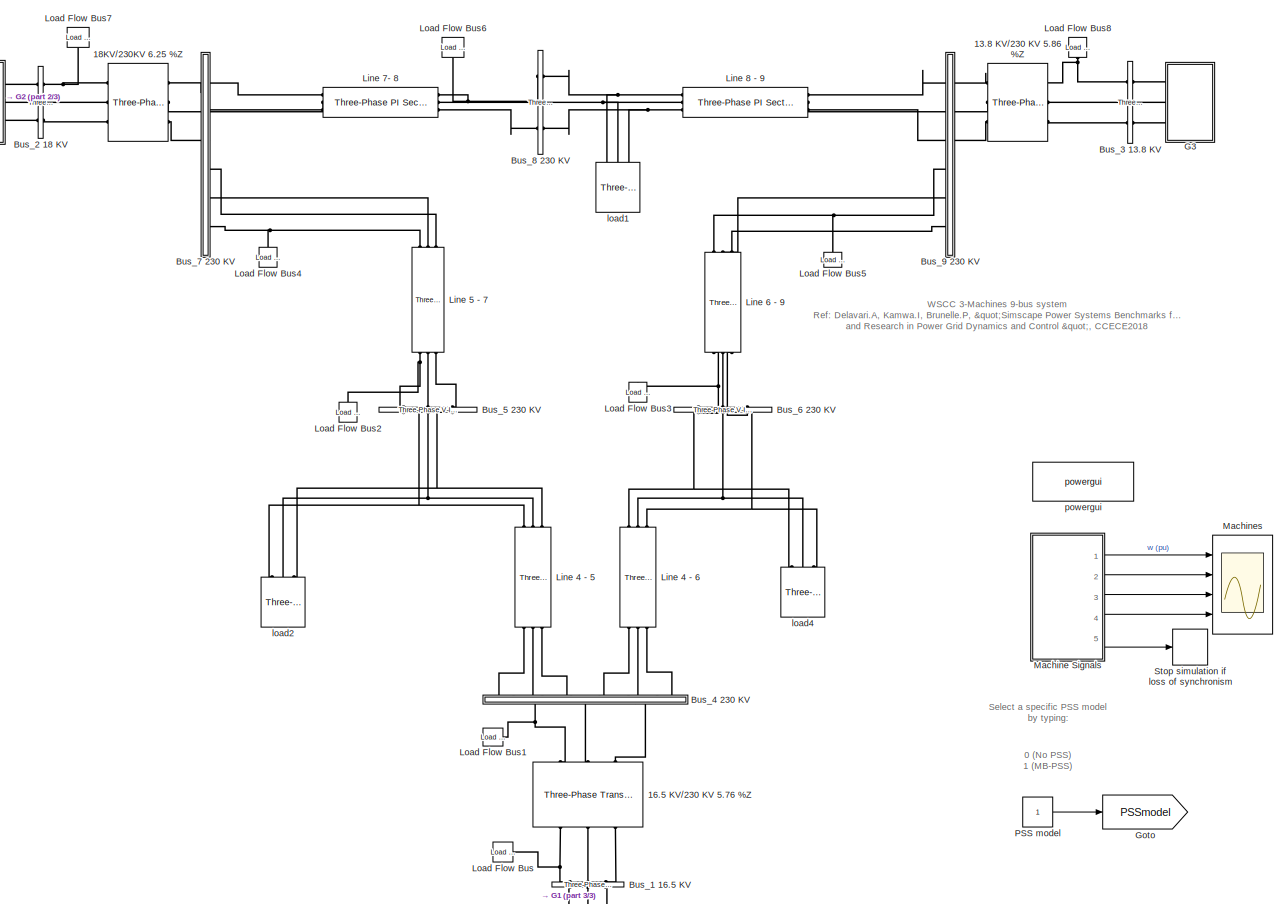
[diagram: root canvas - part 1/3, most of the canvas]
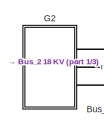
[diagram: root canvas - part 2/3, top left region]
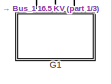
[diagram: root canvas - part 3/3, bottom center region]
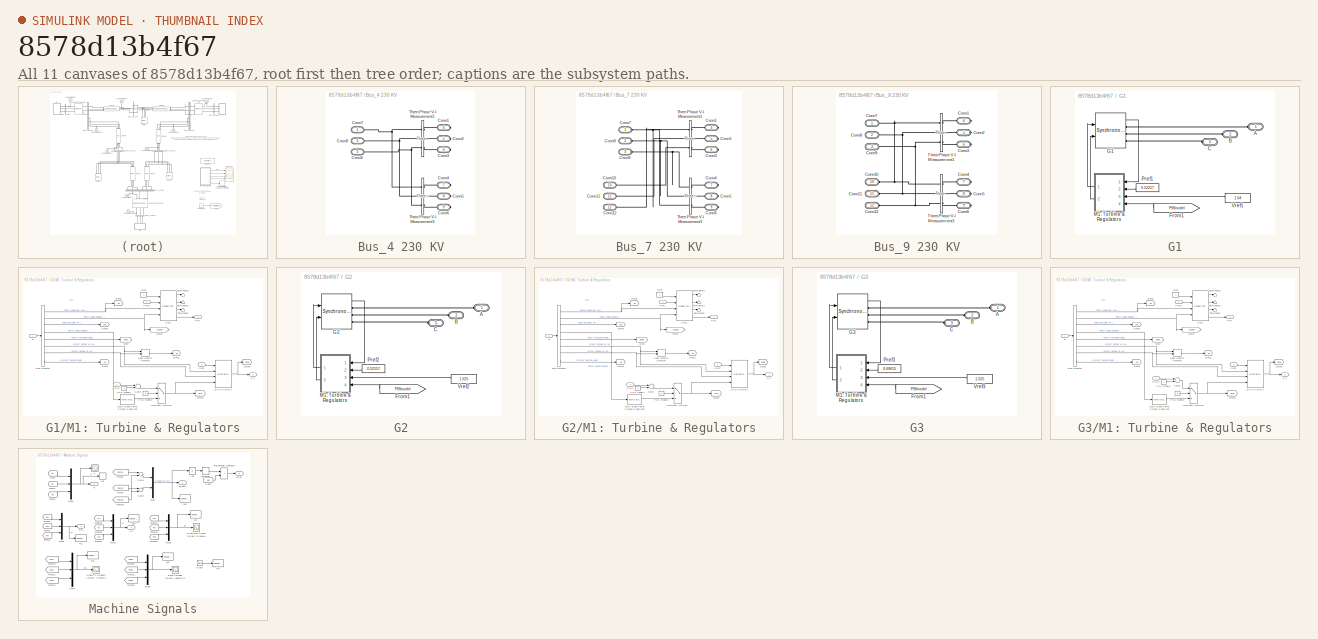
[diagram: thumbnail index - all 11 canvases of the model, root first then tree order]
MODEL slx_8578d13b4f67
KIND model
CONFIG AbsTol = 1e-3
CONFIG FixedStep = auto
CONFIG InitFcn = PSSMODEL=1;\nMB=[1   0.2 30   1.25 40    12 160];\n\nk=[8.3222    2.6014   19.0811    1.9818    3.6841   19.1783  240.6785    2.5684    4.3666   58.7391 7.6960   47.7975    8.7139  296.2463    2.7543    6.5051   47.7755    0.4780   35.4950   18.1866 94.2186]\nk1=k(1);\nk2=k(2);\nk3=k(3);\nk4=k(4);\nk5=k(5);\nk6=k(6);\nk7=k(7);\nk8=k(8);\nk9=k(9);\nk10=k(10);\nk11=k(11);\nk12=k(12);\nk13=k(13);\nk14=k(14);\nk15=k(15...<+69ch>
CONFIG MaxStep = 1/60
CONFIG MinStep = auto
CONFIG RelTol = 1e-4
CONFIG SampleTimeConstraint = Unconstrained
CONFIG Solver = ode23tb
CONFIG SolverMode = Auto
CONFIG SolverName = ode23tb
CONFIG StartTime = 0.0
CONFIG StopTime = 30
BLOCK [Reference]  Line 4 - 6  REF=powerlib/Elements/Three-Phase
PI Section Line
  AttributesFormatString = \n
  Ports = [0, 0, 0, 0, 0, 3, 3]
  SourceBlock = powerlib/Elements/Three-Phase\nPI Section Line
  SourceType = Three-Phase PI Section Line
BLOCK [Reference]  Line 6 - 9  REF=powerlib/Elements/Three-Phase
PI Section Line
  AttributesFormatString = \n
  Ports = [0, 0, 0, 0, 0, 3, 3]
  SourceBlock = powerlib/Elements/Three-Phase\nPI Section Line
  SourceType = Three-Phase PI Section Line
BLOCK [Reference] 13.8 KV//230 KV 5.86 %Z  REF=powerlib/Elements/Three-Phase
Transformer
(Two Windings)
  Ports = [0, 0, 0, 0, 0, 3, 3]
  SourceBlock = powerlib/Elements/Three-Phase\nTransformer\n(Two Windings)
  SourceType = Three-Phase Transformer (Two Windings)
BLOCK [Reference] 16.5 KV//230 KV 5.76 %Z       REF=powerlib/Elements/Three-Phase
Transformer
(Two Windings)
  Ports = [0, 0, 0, 0, 0, 3, 3]
  SourceBlock = powerlib/Elements/Three-Phase\nTransformer\n(Two Windings)
  SourceType = Three-Phase Transformer (Two Windings)
BLOCK [Reference] 18KV//230KV 6.25 %Z  REF=powerlib/Elements/Three-Phase
Transformer
(Two Windings)
  Ports = [0, 0, 0, 0, 0, 3, 3]
  SourceBlock = powerlib/Elements/Three-Phase\nTransformer\n(Two Windings)
  SourceType = Three-Phase Transformer (Two Windings)
BLOCK [Reference] Bus_1 16.5 KV  REF=powerlib/Measurements/Three-Phase
V-I Measurement
  Ports = [0, 0, 0, 0, 0, 3, 3]
  SourceBlock = powerlib/Measurements/Three-Phase\nV-I Measurement
  SourceType = Three-Phase VI Measurement
BLOCK [Reference] Bus_2 18 KV  REF=powerlib/Measurements/Three-Phase
V-I Measurement
  Ports = [0, 0, 0, 0, 0, 3, 3]
  SourceBlock = powerlib/Measurements/Three-Phase\nV-I Measurement
  SourceType = Three-Phase VI Measurement
BLOCK [Reference] Bus_3 13.8 KV  REF=powerlib/Measurements/Three-Phase
V-I Measurement
  Ports = [0, 0, 0, 0, 0, 3, 3]
  SourceBlock = powerlib/Measurements/Three-Phase\nV-I Measurement
  SourceType = Three-Phase VI Measurement
BLOCK [SubSystem] Bus_4 230 KV
  Ports = [0, 0, 0, 0, 0, 3, 6]
  RequestExecContextInheritance = off
  Variant = off
BLOCK [PMIOPort] Bus_4 230 KV/Conn1
  Port = 4
  Side = Right
BLOCK [PMIOPort] Bus_4 230 KV/Conn2
  Port = 5
  Side = Right
BLOCK [PMIOPort] Bus_4 230 KV/Conn3
  Port = 6
  Side = Right
BLOCK [PMIOPort] Bus_4 230 KV/Conn4
  Port = 7
  Side = Right
BLOCK [PMIOPort] Bus_4 230 KV/Conn5
  Port = 8
  Side = Right
BLOCK [PMIOPort] Bus_4 230 KV/Conn6
  Port = 9
  Side = Right
BLOCK [PMIOPort] Bus_4 230 KV/Conn7
  Port = 1
  Side = Left
BLOCK [PMIOPort] Bus_4 230 KV/Conn8
  Port = 2
  Side = Left
BLOCK [PMIOPort] Bus_4 230 KV/Conn9
  Port = 3
  Side = Left
BLOCK [Reference] Bus_4 230 KV/Three-Phase V-I Measurement1  REF=powerlib/Measurements/Three-Phase
V-I Measurement
  Ports = [0, 0, 0, 0, 0, 3, 3]
  SourceBlock = powerlib/Measurements/Three-Phase\nV-I Measurement
  SourceType = Three-Phase VI Measurement
BLOCK [Reference] Bus_4 230 KV/Three-Phase V-I Measurement3  REF=powerlib/Measurements/Three-Phase
V-I Measurement
  Ports = [0, 0, 0, 0, 0, 3, 3]
  SourceBlock = powerlib/Measurements/Three-Phase\nV-I Measurement
  SourceType = Three-Phase VI Measurement
BLOCK [Reference] Bus_5 230 KV  REF=powerlib/Measurements/Three-Phase
V-I Measurement
  Ports = [0, 0, 0, 0, 0, 3, 3]
  SourceBlock = powerlib/Measurements/Three-Phase\nV-I Measurement
  SourceType = Three-Phase VI Measurement
BLOCK [Reference] Bus_6 230 KV  REF=powerlib/Measurements/Three-Phase
V-I Measurement
  Ports = [0, 0, 0, 0, 0, 3, 3]
  SourceBlock = powerlib/Measurements/Three-Phase\nV-I Measurement
  SourceType = Three-Phase VI Measurement
BLOCK [SubSystem] Bus_7 230 KV
  Ports = [0, 0, 0, 0, 0, 6, 6]
  RequestExecContextInheritance = off
  Variant = off
BLOCK [PMIOPort] Bus_7 230 KV/Conn1
  Port = 4
  Side = Right
BLOCK [PMIOPort] Bus_7 230 KV/Conn10
  Port = 10
  Side = Left
BLOCK [PMIOPort] Bus_7 230 KV/Conn11
  Port = 11
  Side = Left
BLOCK [PMIOPort] Bus_7 230 KV/Conn12
  Port = 12
  Side = Left
BLOCK [PMIOPort] Bus_7 230 KV/Conn2
  Port = 5
  Side = Right
BLOCK [PMIOPort] Bus_7 230 KV/Conn3
  Port = 6
  Side = Right
BLOCK [PMIOPort] Bus_7 230 KV/Conn4
  Port = 7
  Side = Right
BLOCK [PMIOPort] Bus_7 230 KV/Conn5
  Port = 8
  Side = Right
BLOCK [PMIOPort] Bus_7 230 KV/Conn6
  Port = 9
  Side = Right
BLOCK [PMIOPort] Bus_7 230 KV/Conn7
  Port = 1
  Side = Left
BLOCK [PMIOPort] Bus_7 230 KV/Conn8
  Port = 2
  Side = Left
BLOCK [PMIOPort] Bus_7 230 KV/Conn9
  Port = 3
  Side = Left
BLOCK [Reference] Bus_7 230 KV/Three-Phase V-I Measurement1  REF=powerlib/Measurements/Three-Phase
V-I Measurement
  Ports = [0, 0, 0, 0, 0, 3, 3]
  SourceBlock = powerlib/Measurements/Three-Phase\nV-I Measurement
  SourceType = Three-Phase VI Measurement
BLOCK [Reference] Bus_7 230 KV/Three-Phase V-I Measurement3  REF=powerlib/Measurements/Three-Phase
V-I Measurement
  Ports = [0, 0, 0, 0, 0, 3, 3]
  SourceBlock = powerlib/Measurements/Three-Phase\nV-I Measurement
  SourceType = Three-Phase VI Measurement
BLOCK [Reference] Bus_8 230 KV  REF=powerlib/Measurements/Three-Phase
V-I Measurement
  Ports = [0, 0, 0, 0, 0, 3, 3]
  SourceBlock = powerlib/Measurements/Three-Phase\nV-I Measurement
  SourceType = Three-Phase VI Measurement
BLOCK [SubSystem] Bus_9 230 KV
  Ports = [0, 0, 0, 0, 0, 6, 6]
  RequestExecContextInheritance = off
  Variant = off
BLOCK [PMIOPort] Bus_9 230 KV/Conn1
  Port = 4
  Side = Right
BLOCK [PMIOPort] Bus_9 230 KV/Conn10
  Port = 10
  Side = Left
BLOCK [PMIOPort] Bus_9 230 KV/Conn11
  Port = 11
  Side = Left
BLOCK [PMIOPort] Bus_9 230 KV/Conn12
  Port = 12
  Side = Left
BLOCK [PMIOPort] Bus_9 230 KV/Conn2
  Port = 5
  Side = Right
BLOCK [PMIOPort] Bus_9 230 KV/Conn3
  Port = 6
  Side = Right
BLOCK [PMIOPort] Bus_9 230 KV/Conn4
  Port = 7
  Side = Right
BLOCK [PMIOPort] Bus_9 230 KV/Conn5
  Port = 8
  Side = Right
BLOCK [PMIOPort] Bus_9 230 KV/Conn6
  Port = 9
  Side = Right
BLOCK [PMIOPort] Bus_9 230 KV/Conn7
  Port = 1
  Side = Left
BLOCK [PMIOPort] Bus_9 230 KV/Conn8
  Port = 2
  Side = Left
BLOCK [PMIOPort] Bus_9 230 KV/Conn9
  Port = 3
  Side = Left
BLOCK [Reference] Bus_9 230 KV/Three-Phase V-I Measurement1  REF=powerlib/Measurements/Three-Phase
V-I Measurement
  Ports = [0, 0, 0, 0, 0, 3, 3]
  SourceBlock = powerlib/Measurements/Three-Phase\nV-I Measurement
  SourceType = Three-Phase VI Measurement
BLOCK [Reference] Bus_9 230 KV/Three-Phase V-I Measurement3  REF=powerlib/Measurements/Three-Phase
V-I Measurement
  Ports = [0, 0, 0, 0, 0, 3, 3]
  SourceBlock = powerlib/Measurements/Three-Phase\nV-I Measurement
  SourceType = Three-Phase VI Measurement
BLOCK [SubSystem] G1
  Ports = [0, 0, 0, 0, 0, 3]
  RequestExecContextInheritance = off
  Variant = off
BLOCK [PMIOPort] G1/A
  Port = 1
  Side = Left
BLOCK [PMIOPort] G1/B
  Port = 2
  Side = Left
BLOCK [PMIOPort] G1/C
  Port = 3
  Side = Left
BLOCK [From] G1/From1
  CloseFcn = tagdialog Close
  GotoTag = PSSmodel
  TagVisibility = global
BLOCK [Reference] G1/G1  REF=powerlib/Machines/Synchronous Machine
pu Standard
  AttributesFormatString = \n\n
  Ports = [2, 1, 0, 0, 0, 0, 3]
  SourceBlock = powerlib/Machines/Synchronous Machine\npu Standard
  SourceType = Synchronous Machine
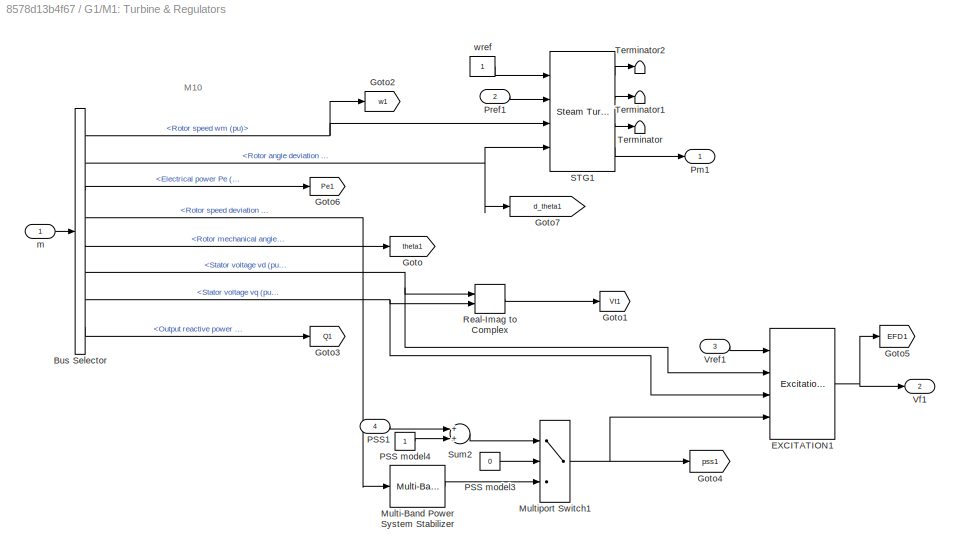
BLOCK [SubSystem] G1/M1: Turbine & Regulators
  Ports = [4, 2]
  RequestExecContextInheritance = off
  Variant = off
BLOCK [BusSelector] G1/M1: Turbine & Regulators/Bus Selector
  OutputSignals = Mechanical.Rotor speed  wm  (pu),Mechanical.Rotor angle deviation  d_theta (rad),Mechanical.Electrical power  Pe (pu),Mechanical.Rotor speed deviation  dw (pu),Mechanical.Rotor mechanical angle  theta (deg),dq0 components.Stator voltage  vd (pu),dq0 components.Stator voltage  vq (pu),Output reactive power  Qeo (pu)  <repeated x3 — deduplicated; at blocks: Bus Selector>
  Ports = [1, 8]
BLOCK [Reference] G1/M1: Turbine & Regulators/EXCITATION1  REF=sps_avr/Excitation System
  Ports = [4, 1]
  SourceBlock = sps_avr/Excitation System
  SourceType = Excitation System
BLOCK [Goto] G1/M1: Turbine & Regulators/Goto
  GotoTag = theta1
  TagVisibility = global
BLOCK [Goto] G1/M1: Turbine & Regulators/Goto1
  GotoTag = Vt1
  TagVisibility = global
BLOCK [Goto] G1/M1: Turbine & Regulators/Goto2
  GotoTag = w1
  TagVisibility = global
BLOCK [Goto] G1/M1: Turbine & Regulators/Goto3
  GotoTag = Q1
  TagVisibility = global
BLOCK [Goto] G1/M1: Turbine & Regulators/Goto4
  GotoTag = pss1
  TagVisibility = global
BLOCK [Goto] G1/M1: Turbine & Regulators/Goto5
  GotoTag = EFD1
  TagVisibility = global
BLOCK [Goto] G1/M1: Turbine & Regulators/Goto6
  GotoTag = Pe1
  TagVisibility = global
BLOCK [Goto] G1/M1: Turbine & Regulators/Goto7
  GotoTag = d_theta1
  TagVisibility = global
BLOCK [Reference] G1/M1: Turbine & Regulators/Multi-Band Power System Stabilizer  REF=powerlib/Machines/Multi-Band
Power System Stabilizer
  Ports = [1, 1]
  SourceBlock = powerlib/Machines/Multi-Band\nPower System Stabilizer
  SourceType = Multi-Band Power System Stabilizer
BLOCK [MultiPortSwitch] G1/M1: Turbine & Regulators/Multiport Switch1
  Inputs = 2
  Ports = [3, 1]
  SaturateOnIntegerOverflow = off
BLOCK [Constant] G1/M1: Turbine & Regulators/PSS model3
  Value = 0
BLOCK [Constant] G1/M1: Turbine & Regulators/PSS model4
BLOCK [Inport] G1/M1: Turbine & Regulators/PSS1
  IconDisplay = Port number
  Port = 4
BLOCK [Outport] G1/M1: Turbine & Regulators/Pm1
  IconDisplay = Port number
  InitialOutput = 0
BLOCK [Inport] G1/M1: Turbine & Regulators/Pref1
  IconDisplay = Port number
  Port = 2
BLOCK [RealImagToComplex] G1/M1: Turbine & Regulators/Real-Imag to Complex
  Ports = [2, 1]
BLOCK [Reference] G1/M1: Turbine & Regulators/STG1  REF=powerlib/Machines/Steam Turbine
and Governor
  Ports = [4, 4]
  SourceBlock = powerlib/Machines/Steam Turbine\nand Governor
  SourceType = Steam Turbine and Governor
BLOCK [Sum] G1/M1: Turbine & Regulators/Sum2
  Ports = [2, 1]
BLOCK [Terminator] G1/M1: Turbine & Regulators/Terminator
BLOCK [Terminator] G1/M1: Turbine & Regulators/Terminator1
BLOCK [Terminator] G1/M1: Turbine & Regulators/Terminator2
BLOCK [Outport] G1/M1: Turbine & Regulators/Vf1
  IconDisplay = Port number
  InitialOutput = 0
  Port = 2
BLOCK [Inport] G1/M1: Turbine & Regulators/Vref1
  IconDisplay = Port number
  Port = 3
BLOCK [Inport] G1/M1: Turbine & Regulators/m
  IconDisplay = Port number
BLOCK [Constant] G1/M1: Turbine & Regulators/wref
BLOCK [Constant] G1/Pref1
  Value = 0.52217
BLOCK [Constant] G1/Vref1
  Value = 1.04
BLOCK [SubSystem] G2
  Ports = [0, 0, 0, 0, 0, 3]
  RequestExecContextInheritance = off
  Variant = off
BLOCK [PMIOPort] G2/A
  Port = 1
  Side = Left
BLOCK [PMIOPort] G2/B
  Port = 2
  Side = Left
BLOCK [PMIOPort] G2/C
  Port = 3
  Side = Left
BLOCK [From] G2/From1
  CloseFcn = tagdialog Close
  GotoTag = PSSmodel
  TagVisibility = global
BLOCK [Reference] G2/G2  REF=powerlib/Machines/Synchronous Machine
pu Standard
  AttributesFormatString = \n\n
  Ports = [2, 1, 0, 0, 0, 0, 3]
  SourceBlock = powerlib/Machines/Synchronous Machine\npu Standard
  SourceType = Synchronous Machine
BLOCK [SubSystem] G2/M1: Turbine & Regulators
  Ports = [4, 2]
  RequestExecContextInheritance = off
  Variant = off
BLOCK [BusSelector] G2/M1: Turbine & Regulators/Bus Selector
  Ports = [1, 8]
BLOCK [Reference] G2/M1: Turbine & Regulators/EXCITATION1  REF=sps_avr/Excitation System
  Ports = [4, 1]
  SourceBlock = sps_avr/Excitation System
  SourceType = Excitation System
BLOCK [Goto] G2/M1: Turbine & Regulators/Goto
  GotoTag = theta2
  TagVisibility = global
BLOCK [Goto] G2/M1: Turbine & Regulators/Goto1
  GotoTag = Vt2
  TagVisibility = global
BLOCK [Goto] G2/M1: Turbine & Regulators/Goto2
  GotoTag = w2
  TagVisibility = global
BLOCK [Goto] G2/M1: Turbine & Regulators/Goto3
  GotoTag = Q2
  TagVisibility = global
BLOCK [Goto] G2/M1: Turbine & Regulators/Goto4
  GotoTag = pss2
  TagVisibility = global
BLOCK [Goto] G2/M1: Turbine & Regulators/Goto5
  GotoTag = EFD2
  TagVisibility = global
BLOCK [Goto] G2/M1: Turbine & Regulators/Goto6
  GotoTag = Pe2
  TagVisibility = global
BLOCK [Goto] G2/M1: Turbine & Regulators/Goto7
  GotoTag = d_theta2
  TagVisibility = global
BLOCK [Reference] G2/M1: Turbine & Regulators/Multi-Band Power System Stabilizer  REF=powerlib/Machines/Multi-Band
Power System Stabilizer
  Ports = [1, 1]
  SourceBlock = powerlib/Machines/Multi-Band\nPower System Stabilizer
  SourceType = Multi-Band Power System Stabilizer
BLOCK [MultiPortSwitch] G2/M1: Turbine & Regulators/Multiport Switch1
  Inputs = 2
  Ports = [3, 1]
  SaturateOnIntegerOverflow = off
BLOCK [Constant] G2/M1: Turbine & Regulators/PSS model3
  Value = 0
BLOCK [Constant] G2/M1: Turbine & Regulators/PSS model4
BLOCK [Inport] G2/M1: Turbine & Regulators/PSS1
  IconDisplay = Port number
  Port = 4
BLOCK [Outport] G2/M1: Turbine & Regulators/Pm1
  IconDisplay = Port number
  InitialOutput = 0
BLOCK [Inport] G2/M1: Turbine & Regulators/Pref1
  IconDisplay = Port number
  Port = 2
BLOCK [RealImagToComplex] G2/M1: Turbine & Regulators/Real-Imag to Complex
  Ports = [2, 1]
BLOCK [Reference] G2/M1: Turbine & Regulators/STG1  REF=powerlib/Machines/Steam Turbine
and Governor
  Ports = [4, 4]
  SourceBlock = powerlib/Machines/Steam Turbine\nand Governor
  SourceType = Steam Turbine and Governor
BLOCK [Sum] G2/M1: Turbine & Regulators/Sum2
  Ports = [2, 1]
BLOCK [Terminator] G2/M1: Turbine & Regulators/Terminator
BLOCK [Terminator] G2/M1: Turbine & Regulators/Terminator1
BLOCK [Terminator] G2/M1: Turbine & Regulators/Terminator2
BLOCK [Outport] G2/M1: Turbine & Regulators/Vf1
  IconDisplay = Port number
  InitialOutput = 0
  Port = 2
BLOCK [Inport] G2/M1: Turbine & Regulators/Vref1
  IconDisplay = Port number
  Port = 3
BLOCK [Inport] G2/M1: Turbine & Regulators/m
  IconDisplay = Port number
BLOCK [Constant] G2/M1: Turbine & Regulators/wref
BLOCK [Constant] G2/Pref2
  Value = 0.52157
BLOCK [Constant] G2/Vref2
  Value = 1.025
BLOCK [SubSystem] G3
  Ports = [0, 0, 0, 0, 0, 3]
  RequestExecContextInheritance = off
  Variant = off
BLOCK [PMIOPort] G3/A
  Port = 1
  Side = Left
BLOCK [PMIOPort] G3/B
  Port = 2
  Side = Left
BLOCK [PMIOPort] G3/C
  Port = 3
  Side = Left
BLOCK [From] G3/From1
  CloseFcn = tagdialog Close
  GotoTag = PSSmodel
  TagVisibility = global
BLOCK [Reference] G3/G3  REF=powerlib/Machines/Synchronous Machine
pu Standard
  AttributesFormatString = \n\n
  Ports = [2, 1, 0, 0, 0, 0, 3]
  SourceBlock = powerlib/Machines/Synchronous Machine\npu Standard
  SourceType = Synchronous Machine
BLOCK [SubSystem] G3/M1: Turbine & Regulators
  Ports = [4, 2]
  RequestExecContextInheritance = off
  Variant = off
BLOCK [BusSelector] G3/M1: Turbine & Regulators/Bus Selector
  Ports = [1, 8]
BLOCK [Reference] G3/M1: Turbine & Regulators/EXCITATION1  REF=sps_avr/Excitation System
  Ports = [4, 1]
  SourceBlock = sps_avr/Excitation System
  SourceType = Excitation System
BLOCK [Goto] G3/M1: Turbine & Regulators/Goto
  GotoTag = theta3
  TagVisibility = global
BLOCK [Goto] G3/M1: Turbine & Regulators/Goto1
  GotoTag = Vt3
  TagVisibility = global
BLOCK [Goto] G3/M1: Turbine & Regulators/Goto2
  GotoTag = w3
  TagVisibility = global
BLOCK [Goto] G3/M1: Turbine & Regulators/Goto3
  GotoTag = Q3
  TagVisibility = global
BLOCK [Goto] G3/M1: Turbine & Regulators/Goto4
  GotoTag = pss3
  TagVisibility = global
BLOCK [Goto] G3/M1: Turbine & Regulators/Goto5
  GotoTag = EFD3
  TagVisibility = global
BLOCK [Goto] G3/M1: Turbine & Regulators/Goto6
  GotoTag = Pe3
  TagVisibility = global
BLOCK [Goto] G3/M1: Turbine & Regulators/Goto7
  GotoTag = d_theta3
  TagVisibility = global
BLOCK [Reference] G3/M1: Turbine & Regulators/Multi-Band Power System Stabilizer  REF=powerlib/Machines/Multi-Band
Power System Stabilizer
  Ports = [1, 1]
  SourceBlock = powerlib/Machines/Multi-Band\nPower System Stabilizer
  SourceType = Multi-Band Power System Stabilizer
BLOCK [MultiPortSwitch] G3/M1: Turbine & Regulators/Multiport Switch1
  Inputs = 2
  Ports = [3, 1]
  SaturateOnIntegerOverflow = off
BLOCK [Constant] G3/M1: Turbine & Regulators/PSS model3
  Value = 0
BLOCK [Constant] G3/M1: Turbine & Regulators/PSS model4
BLOCK [Inport] G3/M1: Turbine & Regulators/PSS1
  IconDisplay = Port number
  Port = 4
BLOCK [Outport] G3/M1: Turbine & Regulators/Pm1
  IconDisplay = Port number
  InitialOutput = 0
BLOCK [Inport] G3/M1: Turbine & Regulators/Pref1
  IconDisplay = Port number
  Port = 2
BLOCK [RealImagToComplex] G3/M1: Turbine & Regulators/Real-Imag to Complex
  Ports = [2, 1]
BLOCK [Reference] G3/M1: Turbine & Regulators/STG1  REF=powerlib/Machines/Steam Turbine
and Governor
  Ports = [4, 4]
  SourceBlock = powerlib/Machines/Steam Turbine\nand Governor
  SourceType = Steam Turbine and Governor
BLOCK [Sum] G3/M1: Turbine & Regulators/Sum2
  Ports = [2, 1]
BLOCK [Terminator] G3/M1: Turbine & Regulators/Terminator
BLOCK [Terminator] G3/M1: Turbine & Regulators/Terminator1
BLOCK [Terminator] G3/M1: Turbine & Regulators/Terminator2
BLOCK [Outport] G3/M1: Turbine & Regulators/Vf1
  IconDisplay = Port number
  InitialOutput = 0
  Port = 2
BLOCK [Inport] G3/M1: Turbine & Regulators/Vref1
  IconDisplay = Port number
  Port = 3
BLOCK [Inport] G3/M1: Turbine & Regulators/m
  IconDisplay = Port number
BLOCK [Constant] G3/M1: Turbine & Regulators/wref
BLOCK [Constant] G3/Pref3
  Value = 0.69615
BLOCK [Constant] G3/Vref3
  Value = 1.025
BLOCK [Goto] Goto
  GotoTag = PSSmodel
  TagVisibility = global
BLOCK [Reference] Line 4 - 5   REF=powerlib/Elements/Three-Phase
PI Section Line
  AttributesFormatString = \n
  Ports = [0, 0, 0, 0, 0, 3, 3]
  SourceBlock = powerlib/Elements/Three-Phase\nPI Section Line
  SourceType = Three-Phase PI Section Line
BLOCK [Reference] Line 5 - 7   REF=powerlib/Elements/Three-Phase
PI Section Line
  AttributesFormatString = \n
  Ports = [0, 0, 0, 0, 0, 3, 3]
  SourceBlock = powerlib/Elements/Three-Phase\nPI Section Line
  SourceType = Three-Phase PI Section Line
BLOCK [Reference] Line 7- 8  REF=powerlib/Elements/Three-Phase
PI Section Line
  AttributesFormatString = \n
  Ports = [0, 0, 0, 0, 0, 3, 3]
  SourceBlock = powerlib/Elements/Three-Phase\nPI Section Line
  SourceType = Three-Phase PI Section Line
BLOCK [Reference] Line 8 - 9  REF=powerlib/Elements/Three-Phase
PI Section Line
  AttributesFormatString = \n
  Ports = [0, 0, 0, 0, 0, 3, 3]
  SourceBlock = powerlib/Elements/Three-Phase\nPI Section Line
  SourceType = Three-Phase PI Section Line
BLOCK [Reference] Load Flow Bus  REF=powerlib/Measurements/Load Flow Bus
  AttributesFormatString = %<ID>\n%<Vbase>V\n%<VLF>pu\n%<angleLF>deg.
  Ports = [0, 0, 0, 0, 0, 1]
  SourceBlock = powerlib/Measurements/Load Flow Bus
  SourceType = Load Flow Bus
BLOCK [Reference] Load Flow Bus1  REF=powerlib/Measurements/Load Flow Bus
  AttributesFormatString = %<ID>\n%<Vbase>V\n%<VLF>pu\n%<angleLF>deg.
  Ports = [0, 0, 0, 0, 0, 1]
  SourceBlock = powerlib/Measurements/Load Flow Bus
  SourceType = Load Flow Bus
BLOCK [Reference] Load Flow Bus2  REF=powerlib/Measurements/Load Flow Bus
  AttributesFormatString = %<ID>\n%<Vbase>V\n%<VLF>pu\n%<angleLF>deg.
  Ports = [0, 0, 0, 0, 0, 1]
  SourceBlock = powerlib/Measurements/Load Flow Bus
  SourceType = Load Flow Bus
BLOCK [Reference] Load Flow Bus3  REF=powerlib/Measurements/Load Flow Bus
  AttributesFormatString = %<ID>\n%<Vbase>V\n%<VLF>pu\n%<angleLF>deg.
  Ports = [0, 0, 0, 0, 0, 1]
  SourceBlock = powerlib/Measurements/Load Flow Bus
  SourceType = Load Flow Bus
BLOCK [Reference] Load Flow Bus4  REF=powerlib/Measurements/Load Flow Bus
  AttributesFormatString = %<ID>\n%<Vbase>V\n%<VLF>pu\n%<angleLF>deg.
  Ports = [0, 0, 0, 0, 0, 1]
  SourceBlock = powerlib/Measurements/Load Flow Bus
  SourceType = Load Flow Bus
BLOCK [Reference] Load Flow Bus5  REF=powerlib/Measurements/Load Flow Bus
  AttributesFormatString = %<ID>\n%<Vbase>V\n%<VLF>pu\n%<angleLF>deg.
  Ports = [0, 0, 0, 0, 0, 1]
  SourceBlock = powerlib/Measurements/Load Flow Bus
  SourceType = Load Flow Bus
BLOCK [Reference] Load Flow Bus6  REF=powerlib/Measurements/Load Flow Bus
  AttributesFormatString = %<ID>\n%<Vbase>V\n%<VLF>pu\n%<angleLF>deg.
  Ports = [0, 0, 0, 0, 0, 1]
  SourceBlock = powerlib/Measurements/Load Flow Bus
  SourceType = Load Flow Bus
BLOCK [Reference] Load Flow Bus7  REF=powerlib/Measurements/Load Flow Bus
  AttributesFormatString = %<ID>\n%<Vbase>V\n%<VLF>pu\n%<angleLF>deg.
  Ports = [0, 0, 0, 0, 0, 1]
  SourceBlock = powerlib/Measurements/Load Flow Bus
  SourceType = Load Flow Bus
BLOCK [Reference] Load Flow Bus8  REF=powerlib/Measurements/Load Flow Bus
  AttributesFormatString = %<ID>\n%<Vbase>V\n%<VLF>pu\n%<angleLF>deg.
  Ports = [0, 0, 0, 0, 0, 1]
  SourceBlock = powerlib/Measurements/Load Flow Bus
  SourceType = Load Flow Bus
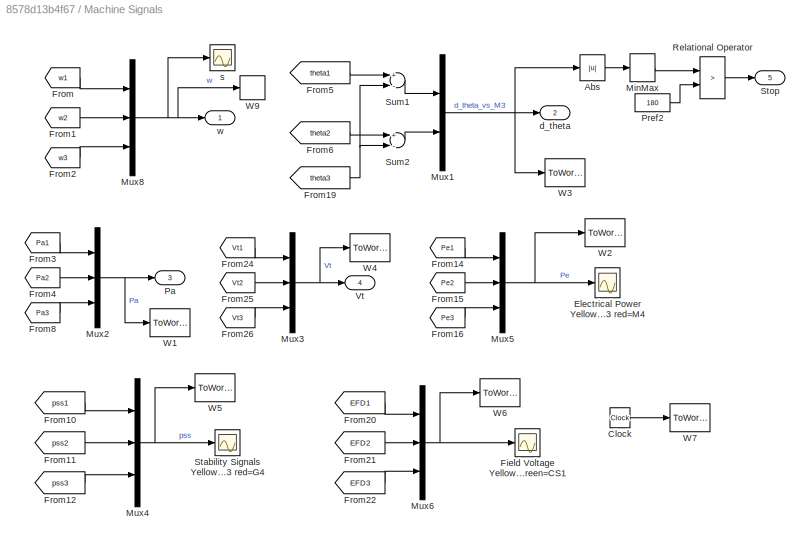
BLOCK [SubSystem] Machine Signals
  Ports = [0, 5]
  RequestExecContextInheritance = off
  Variant = off
BLOCK [Abs] Machine Signals/Abs
BLOCK [Clock] Machine Signals/Clock
BLOCK [Scope] Machine Signals/Electrical Power Yellow=M1 mag=M2 cyan=M3 red=M4 
  Ports = [1]
  ScopeSpecificationString = C++SS(StrPVP('Location','[205, 118, 911, 491]'),StrPVP('Open','off'),MxPVP('AxesTitles',24,'struct(''axes1'',''%<SignalLabel>'')'),StrPVP('ShowLegends','off'),StrPVP('YMin','0.3'),StrPVP('YMax','1'),StrPVP('SaveName','ScopeData1'),StrPVP('DataFormat','StructureWithTime'),StrPVP('LimitDataPoints','off'),StrPVP('Decimation','1'),StrPVP('BlockParamSampleInput','off'),StrPVP('SaveName','ScopeData2'))
BLOCK [Scope] Machine Signals/Field Voltage Yellow=G1 mag=G2 cyan=G3 red=G4 green=CS1
  Ports = [1]
  ScopeSpecificationString = C++SS(StrPVP('Location','[205, 118, 911, 491]'),StrPVP('Open','off'),MxPVP('AxesTitles',24,'struct(''axes1'',''EFD'')'),StrPVP('ShowLegends','off'),StrPVP('YMin','1.845'),StrPVP('YMax','1.96'),StrPVP('SaveName','ScopeData4'),StrPVP('DataFormat','StructureWithTime'),StrPVP('LimitDataPoints','off'),StrPVP('Decimation','1'),StrPVP('BlockParamSampleInput','off'),StrPVP('SaveName','ScopeData3'))
BLOCK [From] Machine Signals/From
  CloseFcn = tagdialog Close
  GotoTag = w1
  TagVisibility = global
BLOCK [From] Machine Signals/From1
  CloseFcn = tagdialog Close
  GotoTag = w2
  TagVisibility = global
BLOCK [From] Machine Signals/From10
  CloseFcn = tagdialog Close
  GotoTag = pss1
  TagVisibility = global
BLOCK [From] Machine Signals/From11
  CloseFcn = tagdialog Close
  GotoTag = pss2
  TagVisibility = global
BLOCK [From] Machine Signals/From12
  CloseFcn = tagdialog Close
  GotoTag = pss3
  TagVisibility = global
BLOCK [From] Machine Signals/From14
  CloseFcn = tagdialog Close
  GotoTag = Pe1
  TagVisibility = global
BLOCK [From] Machine Signals/From15
  CloseFcn = tagdialog Close
  GotoTag = Pe2
  TagVisibility = global
BLOCK [From] Machine Signals/From16
  CloseFcn = tagdialog Close
  GotoTag = Pe3
  TagVisibility = global
BLOCK [From] Machine Signals/From19
  CloseFcn = tagdialog Close
  GotoTag = theta3
  TagVisibility = global
BLOCK [From] Machine Signals/From2
  CloseFcn = tagdialog Close
  GotoTag = w3
  TagVisibility = global
BLOCK [From] Machine Signals/From20
  CloseFcn = tagdialog Close
  GotoTag = EFD1
  TagVisibility = global
BLOCK [From] Machine Signals/From21
  CloseFcn = tagdialog Close
  GotoTag = EFD2
  TagVisibility = global
BLOCK [From] Machine Signals/From22
  CloseFcn = tagdialog Close
  GotoTag = EFD3
  TagVisibility = global
BLOCK [From] Machine Signals/From24
  CloseFcn = tagdialog Close
  GotoTag = Vt1
  TagVisibility = global
BLOCK [From] Machine Signals/From25
  CloseFcn = tagdialog Close
  GotoTag = Vt2
  TagVisibility = global
BLOCK [From] Machine Signals/From26
  CloseFcn = tagdialog Close
  GotoTag = Vt3
  TagVisibility = global
BLOCK [From] Machine Signals/From3
  CloseFcn = tagdialog Close
  GotoTag = Pa1
BLOCK [From] Machine Signals/From4
  CloseFcn = tagdialog Close
  GotoTag = Pa2
BLOCK [From] Machine Signals/From5
  CloseFcn = tagdialog Close
  GotoTag = theta1
  TagVisibility = global
BLOCK [From] Machine Signals/From6
  CloseFcn = tagdialog Close
  GotoTag = theta2
  TagVisibility = global
BLOCK [From] Machine Signals/From8
  CloseFcn = tagdialog Close
  GotoTag = Pa3
BLOCK [MinMax] Machine Signals/MinMax
  Function = max
  Ports = [1, 1]
BLOCK [Mux] Machine Signals/Mux1
  DisplayOption = bar
  Inputs = 2
  Ports = [2, 1]
BLOCK [Mux] Machine Signals/Mux2
  DisplayOption = bar
  Inputs = 3
  Ports = [3, 1]
BLOCK [Mux] Machine Signals/Mux3
  DisplayOption = bar
  Inputs = 3
  Ports = [3, 1]
BLOCK [Mux] Machine Signals/Mux4
  DisplayOption = bar
  Inputs = 3
  Ports = [3, 1]
BLOCK [Mux] Machine Signals/Mux5
  DisplayOption = bar
  Inputs = 3
  Ports = [3, 1]
BLOCK [Mux] Machine Signals/Mux6
  DisplayOption = bar
  Inputs = 3
  Ports = [3, 1]
BLOCK [Mux] Machine Signals/Mux8
  DisplayOption = bar
  Inputs = 3
  Ports = [3, 1]
BLOCK [Outport] Machine Signals/Pa
  IconDisplay = Port number
  Port = 3
BLOCK [Constant] Machine Signals/Pref2
  Value = 180
BLOCK [RelationalOperator] Machine Signals/Relational Operator
  Operator = >
  Ports = [2, 1]
BLOCK [Scope] Machine Signals/Stability Signals Yellow=G1 mag=G2 cyan=G3 red=G4 
  Ports = [1]
  ScopeSpecificationString = Simulink.scopes.TimeScopeBlockCfg('CurrentConfiguration', extmgr.ConfigurationSet(extmgr.Configuration('Core','General UI',true),extmgr.Configuration('Core','Source UI',true),extmgr.Configuration('Sources','WiredSimulink',true,'DataLoggingSaveFormat','StructureWithTime','DataLoggingDecimation','1','DataLoggingDecimateData',true),extmgr.Configuration('Visuals','Time Domain',true,'SerializedDisplays...<+1618ch>
BLOCK [Outport] Machine Signals/Stop
  IconDisplay = Port number
  Port = 5
BLOCK [Sum] Machine Signals/Sum1
  Inputs = +-
  Ports = [2, 1]
BLOCK [Sum] Machine Signals/Sum2
  Inputs = +-
  Ports = [2, 1]
BLOCK [Outport] Machine Signals/Vt
  IconDisplay = Port number
  Port = 4
BLOCK [ToWorkspace] Machine Signals/W1
  MaxDataPoints = inf
  Ports = [1]
  SampleTime = 1/60
  VariableName = Pa
BLOCK [ToWorkspace] Machine Signals/W2
  MaxDataPoints = inf
  Ports = [1]
  SampleTime = 1/60
  VariableName = Pe
BLOCK [ToWorkspace] Machine Signals/W3
  MaxDataPoints = inf
  Ports = [1]
  SampleTime = 1/60
  VariableName = DTH
BLOCK [ToWorkspace] Machine Signals/W4
  MaxDataPoints = inf
  Ports = [1]
  SampleTime = 1/60
  VariableName = Vt
BLOCK [ToWorkspace] Machine Signals/W5
  MaxDataPoints = inf
  Ports = [1]
  SampleTime = 1/60
  VariableName = PSS
BLOCK [ToWorkspace] Machine Signals/W6
  MaxDataPoints = inf
  Ports = [1]
  SampleTime = 1/60
  VariableName = EFD
BLOCK [ToWorkspace] Machine Signals/W7
  MaxDataPoints = inf
  Ports = [1]
  SampleTime = 1/60
  VariableName = t
BLOCK [ToWorkspace] Machine Signals/W9
  MaxDataPoints = inf
  Ports = [1]
  SampleTime = 1/60
  SaveFormat = Timeseries
  VariableName = w
BLOCK [Outport] Machine Signals/d_theta
  IconDisplay = Port number
  Port = 2
BLOCK [Scope] Machine Signals/s
  Ports = [1]
  ScopeSpecificationString = Simulink.scopes.TimeScopeBlockCfg('CurrentConfiguration', extmgr.ConfigurationSet(extmgr.Configuration('Core','General UI',true),extmgr.Configuration('Core','Source UI',true),extmgr.Configuration('Sources','WiredSimulink',true,'DataLoggingVariableName','ScopeData1'),extmgr.Configuration('Visuals','Time Domain',true,'SerializedDisplays',{struct('MinYLimReal','0.999951','MaxYLimReal','1.000006','YLa...<+1380ch>
BLOCK [Outport] Machine Signals/w
  IconDisplay = Port number
BLOCK [Scope] Machines
  NumInputPorts = 4
  Ports = [4]
  ScopeSpecificationString = Simulink.scopes.TimeScopeBlockCfg('CurrentConfiguration', extmgr.ConfigurationSet(extmgr.Configuration('Core','General UI',true),extmgr.Configuration('Core','Source UI',true),extmgr.Configuration('Sources','WiredSimulink',true,'DataLoggingVariableName','ScopeData4','DataLoggingDecimateData',true),extmgr.Configuration('Visuals','Time Domain',true,'SerializedDisplays',{struct('MinYLimReal','0.82052'...<+2586ch>
BLOCK [Constant] PSS model
BLOCK [Stop] Stop simulation if loss of synchronism
BLOCK [Reference] load1  REF=powerlib/Elements/Three-Phase
Parallel RLC Load
  AttributesFormatString = \n
  Ports = [0, 0, 0, 0, 0, 3]
  SourceBlock = powerlib/Elements/Three-Phase\nParallel RLC Load
  SourceType = Three-Phase Parallel RLC Load
BLOCK [Reference] load2  REF=powerlib/Elements/Three-Phase
Parallel RLC Load
  AttributesFormatString = \n
  Ports = [0, 0, 0, 0, 0, 3]
  SourceBlock = powerlib/Elements/Three-Phase\nParallel RLC Load
  SourceType = Three-Phase Parallel RLC Load
BLOCK [Reference] load4  REF=powerlib/Elements/Three-Phase
Parallel RLC Load
  AttributesFormatString = \n
  Ports = [0, 0, 0, 0, 0, 3]
  SourceBlock = powerlib/Elements/Three-Phase\nParallel RLC Load
  SourceType = Three-Phase Parallel RLC Load
BLOCK [Reference] powergui  REF=powerlib/powergui
  Ports = []
  Priority = 1
  SourceBlock = powerlib/powergui
  SourceType = PSB option menu block
  UserDataPersistent = on
ANNOTATION (root): 0 (No PSS) 1 (MB-PSS)
ANNOTATION (root): WSCC 3-Machines 9-bus system Ref: Delavari.A, Kamwa.I, Brunelle.P, " Simscape Power Systems Benchmarks for Education and Research in Power Grid Dynamics and Control ", CCECE2018
ANNOTATION (root): Select a specific PSS model by typing:
ANNOTATION G1/M1: Turbine & Regulators: M10
ANNOTATION G2/M1: Turbine & Regulators: M10
ANNOTATION G3/M1: Turbine & Regulators: M10
LINE G1/From1:1 -> G1/M1: Turbine & Regulators:4
LINE G1/G1:1 -> G1/M1: Turbine & Regulators:1
NET G1/M1: Turbine & Regulators/Bus Selector:1 -> G1/M1: Turbine & Regulators/Goto2:1, G1/M1: Turbine & Regulators/STG1:3
NET G1/M1: Turbine & Regulators/Bus Selector:2 -> G1/M1: Turbine & Regulators/Goto7:1, G1/M1: Turbine & Regulators/STG1:4
LINE G1/M1: Turbine & Regulators/Bus Selector:3 -> G1/M1: Turbine & Regulators/Goto6:1
LINE G1/M1: Turbine & Regulators/Bus Selector:4 -> G1/M1: Turbine & Regulators/Multi-Band Power System Stabilizer:1
LINE G1/M1: Turbine & Regulators/Bus Selector:5 -> G1/M1: Turbine & Regulators/Goto:1
NET G1/M1: Turbine & Regulators/Bus Selector:6 -> G1/M1: Turbine & Regulators/EXCITATION1:2, G1/M1: Turbine & Regulators/Real-Imag to Complex:1
NET G1/M1: Turbine & Regulators/Bus Selector:7 -> G1/M1: Turbine & Regulators/EXCITATION1:3, G1/M1: Turbine & Regulators/Real-Imag to Complex:2
LINE G1/M1: Turbine & Regulators/Bus Selector:8 -> G1/M1: Turbine & Regulators/Goto3:1
NET G1/M1: Turbine & Regulators/EXCITATION1:1 -> G1/M1: Turbine & Regulators/Goto5:1, G1/M1: Turbine & Regulators/Vf1:1
LINE G1/M1: Turbine & Regulators/Multi-Band Power System Stabilizer:1 -> G1/M1: Turbine & Regulators/Multiport Switch1:3
NET G1/M1: Turbine & Regulators/Multiport Switch1:1 -> G1/M1: Turbine & Regulators/EXCITATION1:4, G1/M1: Turbine & Regulators/Goto4:1
LINE G1/M1: Turbine & Regulators/PSS model3:1 -> G1/M1: Turbine & Regulators/Multiport Switch1:2
LINE G1/M1: Turbine & Regulators/PSS model4:1 -> G1/M1: Turbine & Regulators/Sum2:2
LINE G1/M1: Turbine & Regulators/PSS1:1 -> G1/M1: Turbine & Regulators/Sum2:1
LINE G1/M1: Turbine & Regulators/Pref1:1 -> G1/M1: Turbine & Regulators/STG1:2
LINE G1/M1: Turbine & Regulators/Real-Imag to Complex:1 -> G1/M1: Turbine & Regulators/Goto1:1
LINE G1/M1: Turbine & Regulators/STG1:1 -> G1/M1: Turbine & Regulators/Terminator2:1
LINE G1/M1: Turbine & Regulators/STG1:2 -> G1/M1: Turbine & Regulators/Terminator1:1
LINE G1/M1: Turbine & Regulators/STG1:3 -> G1/M1: Turbine & Regulators/Terminator:1
LINE G1/M1: Turbine & Regulators/STG1:4 -> G1/M1: Turbine & Regulators/Pm1:1
LINE G1/M1: Turbine & Regulators/Sum2:1 -> G1/M1: Turbine & Regulators/Multiport Switch1:1
LINE G1/M1: Turbine & Regulators/Vref1:1 -> G1/M1: Turbine & Regulators/EXCITATION1:1
LINE G1/M1: Turbine & Regulators/m:1 -> G1/M1: Turbine & Regulators/Bus Selector:1
LINE G1/M1: Turbine & Regulators/wref:1 -> G1/M1: Turbine & Regulators/STG1:1
LINE G1/M1: Turbine & Regulators:1 -> G1/G1:1
LINE G1/M1: Turbine & Regulators:2 -> G1/G1:2
LINE G1/Pref1:1 -> G1/M1: Turbine & Regulators:2
LINE G1/Vref1:1 -> G1/M1: Turbine & Regulators:3
LINE G2/From1:1 -> G2/M1: Turbine & Regulators:4
LINE G2/G2:1 -> G2/M1: Turbine & Regulators:1
NET G2/M1: Turbine & Regulators/Bus Selector:1 -> G2/M1: Turbine & Regulators/Goto2:1, G2/M1: Turbine & Regulators/STG1:3
NET G2/M1: Turbine & Regulators/Bus Selector:2 -> G2/M1: Turbine & Regulators/Goto7:1, G2/M1: Turbine & Regulators/STG1:4
LINE G2/M1: Turbine & Regulators/Bus Selector:3 -> G2/M1: Turbine & Regulators/Goto6:1
LINE G2/M1: Turbine & Regulators/Bus Selector:4 -> G2/M1: Turbine & Regulators/Multi-Band Power System Stabilizer:1
LINE G2/M1: Turbine & Regulators/Bus Selector:5 -> G2/M1: Turbine & Regulators/Goto:1
NET G2/M1: Turbine & Regulators/Bus Selector:6 -> G2/M1: Turbine & Regulators/EXCITATION1:2, G2/M1: Turbine & Regulators/Real-Imag to Complex:1
NET G2/M1: Turbine & Regulators/Bus Selector:7 -> G2/M1: Turbine & Regulators/EXCITATION1:3, G2/M1: Turbine & Regulators/Real-Imag to Complex:2
LINE G2/M1: Turbine & Regulators/Bus Selector:8 -> G2/M1: Turbine & Regulators/Goto3:1
NET G2/M1: Turbine & Regulators/EXCITATION1:1 -> G2/M1: Turbine & Regulators/Goto5:1, G2/M1: Turbine & Regulators/Vf1:1
LINE G2/M1: Turbine & Regulators/Multi-Band Power System Stabilizer:1 -> G2/M1: Turbine & Regulators/Multiport Switch1:3
NET G2/M1: Turbine & Regulators/Multiport Switch1:1 -> G2/M1: Turbine & Regulators/EXCITATION1:4, G2/M1: Turbine & Regulators/Goto4:1
LINE G2/M1: Turbine & Regulators/PSS model3:1 -> G2/M1: Turbine & Regulators/Multiport Switch1:2
LINE G2/M1: Turbine & Regulators/PSS model4:1 -> G2/M1: Turbine & Regulators/Sum2:2
LINE G2/M1: Turbine & Regulators/PSS1:1 -> G2/M1: Turbine & Regulators/Sum2:1
LINE G2/M1: Turbine & Regulators/Pref1:1 -> G2/M1: Turbine & Regulators/STG1:2
LINE G2/M1: Turbine & Regulators/Real-Imag to Complex:1 -> G2/M1: Turbine & Regulators/Goto1:1
LINE G2/M1: Turbine & Regulators/STG1:1 -> G2/M1: Turbine & Regulators/Terminator2:1
LINE G2/M1: Turbine & Regulators/STG1:2 -> G2/M1: Turbine & Regulators/Terminator1:1
LINE G2/M1: Turbine & Regulators/STG1:3 -> G2/M1: Turbine & Regulators/Terminator:1
LINE G2/M1: Turbine & Regulators/STG1:4 -> G2/M1: Turbine & Regulators/Pm1:1
LINE G2/M1: Turbine & Regulators/Sum2:1 -> G2/M1: Turbine & Regulators/Multiport Switch1:1
LINE G2/M1: Turbine & Regulators/Vref1:1 -> G2/M1: Turbine & Regulators/EXCITATION1:1
LINE G2/M1: Turbine & Regulators/m:1 -> G2/M1: Turbine & Regulators/Bus Selector:1
LINE G2/M1: Turbine & Regulators/wref:1 -> G2/M1: Turbine & Regulators/STG1:1
LINE G2/M1: Turbine & Regulators:1 -> G2/G2:1
LINE G2/M1: Turbine & Regulators:2 -> G2/G2:2
LINE G2/Pref2:1 -> G2/M1: Turbine & Regulators:2
LINE G2/Vref2:1 -> G2/M1: Turbine & Regulators:3
LINE G3/From1:1 -> G3/M1: Turbine & Regulators:4
LINE G3/G3:1 -> G3/M1: Turbine & Regulators:1
NET G3/M1: Turbine & Regulators/Bus Selector:1 -> G3/M1: Turbine & Regulators/Goto2:1, G3/M1: Turbine & Regulators/STG1:3
NET G3/M1: Turbine & Regulators/Bus Selector:2 -> G3/M1: Turbine & Regulators/Goto7:1, G3/M1: Turbine & Regulators/STG1:4
LINE G3/M1: Turbine & Regulators/Bus Selector:3 -> G3/M1: Turbine & Regulators/Goto6:1
LINE G3/M1: Turbine & Regulators/Bus Selector:4 -> G3/M1: Turbine & Regulators/Multi-Band Power System Stabilizer:1
LINE G3/M1: Turbine & Regulators/Bus Selector:5 -> G3/M1: Turbine & Regulators/Goto:1
NET G3/M1: Turbine & Regulators/Bus Selector:6 -> G3/M1: Turbine & Regulators/EXCITATION1:2, G3/M1: Turbine & Regulators/Real-Imag to Complex:1
NET G3/M1: Turbine & Regulators/Bus Selector:7 -> G3/M1: Turbine & Regulators/EXCITATION1:3, G3/M1: Turbine & Regulators/Real-Imag to Complex:2
LINE G3/M1: Turbine & Regulators/Bus Selector:8 -> G3/M1: Turbine & Regulators/Goto3:1
NET G3/M1: Turbine & Regulators/EXCITATION1:1 -> G3/M1: Turbine & Regulators/Goto5:1, G3/M1: Turbine & Regulators/Vf1:1
LINE G3/M1: Turbine & Regulators/Multi-Band Power System Stabilizer:1 -> G3/M1: Turbine & Regulators/Multiport Switch1:3
NET G3/M1: Turbine & Regulators/Multiport Switch1:1 -> G3/M1: Turbine & Regulators/EXCITATION1:4, G3/M1: Turbine & Regulators/Goto4:1
LINE G3/M1: Turbine & Regulators/PSS model3:1 -> G3/M1: Turbine & Regulators/Multiport Switch1:2
LINE G3/M1: Turbine & Regulators/PSS model4:1 -> G3/M1: Turbine & Regulators/Sum2:2
LINE G3/M1: Turbine & Regulators/PSS1:1 -> G3/M1: Turbine & Regulators/Sum2:1
LINE G3/M1: Turbine & Regulators/Pref1:1 -> G3/M1: Turbine & Regulators/STG1:2
LINE G3/M1: Turbine & Regulators/Real-Imag to Complex:1 -> G3/M1: Turbine & Regulators/Goto1:1
LINE G3/M1: Turbine & Regulators/STG1:1 -> G3/M1: Turbine & Regulators/Terminator2:1
LINE G3/M1: Turbine & Regulators/STG1:2 -> G3/M1: Turbine & Regulators/Terminator1:1
LINE G3/M1: Turbine & Regulators/STG1:3 -> G3/M1: Turbine & Regulators/Terminator:1
LINE G3/M1: Turbine & Regulators/STG1:4 -> G3/M1: Turbine & Regulators/Pm1:1
LINE G3/M1: Turbine & Regulators/Sum2:1 -> G3/M1: Turbine & Regulators/Multiport Switch1:1
LINE G3/M1: Turbine & Regulators/Vref1:1 -> G3/M1: Turbine & Regulators/EXCITATION1:1
LINE G3/M1: Turbine & Regulators/m:1 -> G3/M1: Turbine & Regulators/Bus Selector:1
LINE G3/M1: Turbine & Regulators/wref:1 -> G3/M1: Turbine & Regulators/STG1:1
LINE G3/M1: Turbine & Regulators:1 -> G3/G3:1
LINE G3/M1: Turbine & Regulators:2 -> G3/G3:2
LINE G3/Pref3:1 -> G3/M1: Turbine & Regulators:2
LINE G3/Vref3:1 -> G3/M1: Turbine & Regulators:3
LINE Machine Signals/Abs:1 -> Machine Signals/MinMax:1
LINE Machine Signals/Clock:1 -> Machine Signals/W7:1
LINE Machine Signals/From10:1 -> Machine Signals/Mux4:1
LINE Machine Signals/From11:1 -> Machine Signals/Mux4:2
LINE Machine Signals/From12:1 -> Machine Signals/Mux4:3
LINE Machine Signals/From14:1 -> Machine Signals/Mux5:1
LINE Machine Signals/From15:1 -> Machine Signals/Mux5:2
LINE Machine Signals/From16:1 -> Machine Signals/Mux5:3
NET Machine Signals/From19:1 -> Machine Signals/Sum1:2, Machine Signals/Sum2:2
LINE Machine Signals/From1:1 -> Machine Signals/Mux8:2
LINE Machine Signals/From20:1 -> Machine Signals/Mux6:1
LINE Machine Signals/From21:1 -> Machine Signals/Mux6:2
LINE Machine Signals/From22:1 -> Machine Signals/Mux6:3
LINE Machine Signals/From24:1 -> Machine Signals/Mux3:1
LINE Machine Signals/From25:1 -> Machine Signals/Mux3:2
LINE Machine Signals/From26:1 -> Machine Signals/Mux3:3
LINE Machine Signals/From2:1 -> Machine Signals/Mux8:3
LINE Machine Signals/From3:1 -> Machine Signals/Mux2:1
LINE Machine Signals/From4:1 -> Machine Signals/Mux2:2
LINE Machine Signals/From5:1 -> Machine Signals/Sum1:1
LINE Machine Signals/From6:1 -> Machine Signals/Sum2:1
LINE Machine Signals/From8:1 -> Machine Signals/Mux2:3
LINE Machine Signals/From:1 -> Machine Signals/Mux8:1
LINE Machine Signals/MinMax:1 -> Machine Signals/Relational Operator:1
NET Machine Signals/Mux1:1 -> Machine Signals/Abs:1, Machine Signals/W3:1, Machine Signals/d_theta:1
NET Machine Signals/Mux2:1 -> Machine Signals/Pa:1, Machine Signals/W1:1
NET Machine Signals/Mux3:1 -> Machine Signals/Vt:1, Machine Signals/W4:1
NET Machine Signals/Mux4:1 -> Machine Signals/Stability Signals Yellow=G1 mag=G2 cyan=G3 red=G4 :1, Machine Signals/W5:1
NET Machine Signals/Mux5:1 -> Machine Signals/Electrical Power Yellow=M1 mag=M2 cyan=M3 red=M4 :1, Machine Signals/W2:1
NET Machine Signals/Mux6:1 -> Machine Signals/Field Voltage Yellow=G1 mag=G2 cyan=G3 red=G4 green=CS1:1, Machine Signals/W6:1
NET Machine Signals/Mux8:1 -> Machine Signals/W9:1, Machine Signals/s:1, Machine Signals/w:1
LINE Machine Signals/Pref2:1 -> Machine Signals/Relational Operator:2
LINE Machine Signals/Relational Operator:1 -> Machine Signals/Stop:1
LINE Machine Signals/Sum1:1 -> Machine Signals/Mux1:1
LINE Machine Signals/Sum2:1 -> Machine Signals/Mux1:2
LINE Machine Signals:1 -> Machines:1
LINE Machine Signals:2 -> Machines:2
LINE Machine Signals:3 -> Machines:3
LINE Machine Signals:4 -> Machines:4
LINE Machine Signals:5 -> Stop simulation if loss of synchronism:1
LINE PSS model:1 -> Goto:1
PNET net1:  Line 4 - 6:LConn1 -- Bus_6 230 KV:RConn1 -- load4:LConn1
PNET net2:  Line 4 - 6:LConn2 -- Bus_6 230 KV:RConn2 -- load4:LConn2
PNET net3:  Line 4 - 6:LConn3 -- Bus_6 230 KV:RConn3 -- load4:LConn3
PLINE  Line 4 - 6:RConn1 -- Bus_4 230 KV:RConn4
PLINE  Line 4 - 6:RConn2 -- Bus_4 230 KV:RConn5
PLINE  Line 4 - 6:RConn3 -- Bus_4 230 KV:RConn6
PNET net4:  Line 6 - 9:LConn1 -- Bus_6 230 KV:LConn1 -- Load Flow Bus3:LConn1
PLINE  Line 6 - 9:LConn2 -- Bus_6 230 KV:LConn2
PLINE  Line 6 - 9:LConn3 -- Bus_6 230 KV:LConn3
PNET net5:  Line 6 - 9:RConn1 -- Bus_9 230 KV:LConn4 -- Load Flow Bus5:LConn1
PLINE  Line 6 - 9:RConn2 -- Bus_9 230 KV:LConn5
PLINE  Line 6 - 9:RConn3 -- Bus_9 230 KV:LConn6
PNET net6: 13.8 KV//230 KV 5.86 %Z:LConn1 -- Bus_3 13.8 KV:LConn1 -- Load Flow Bus8:LConn1
PLINE 13.8 KV//230 KV 5.86 %Z:LConn2 -- Bus_3 13.8 KV:LConn2
PLINE 13.8 KV//230 KV 5.86 %Z:LConn3 -- Bus_3 13.8 KV:LConn3
PLINE 13.8 KV//230 KV 5.86 %Z:RConn1 -- Bus_9 230 KV:RConn1
PLINE 13.8 KV//230 KV 5.86 %Z:RConn2 -- Bus_9 230 KV:RConn2
PLINE 13.8 KV//230 KV 5.86 %Z:RConn3 -- Bus_9 230 KV:RConn3
PNET net7: 16.5 KV//230 KV 5.76 %Z     :LConn1 -- Bus_1 16.5 KV:LConn1 -- Load Flow Bus:LConn1
PLINE 16.5 KV//230 KV 5.76 %Z     :LConn2 -- Bus_1 16.5 KV:LConn2
PLINE 16.5 KV//230 KV 5.76 %Z     :LConn3 -- Bus_1 16.5 KV:LConn3
PNET net8: 16.5 KV//230 KV 5.76 %Z     :RConn1 -- Bus_4 230 KV:LConn1 -- Load Flow Bus1:LConn1
PLINE 16.5 KV//230 KV 5.76 %Z     :RConn2 -- Bus_4 230 KV:LConn2
PLINE 16.5 KV//230 KV 5.76 %Z     :RConn3 -- Bus_4 230 KV:LConn3
PNET net9: 18KV//230KV 6.25 %Z:LConn1 -- Bus_2 18 KV:RConn1 -- Load Flow Bus7:LConn1
PLINE 18KV//230KV 6.25 %Z:LConn2 -- Bus_2 18 KV:RConn2
PLINE 18KV//230KV 6.25 %Z:LConn3 -- Bus_2 18 KV:RConn3
PLINE 18KV//230KV 6.25 %Z:RConn1 -- Bus_7 230 KV:LConn1
PLINE 18KV//230KV 6.25 %Z:RConn2 -- Bus_7 230 KV:LConn2
PLINE 18KV//230KV 6.25 %Z:RConn3 -- Bus_7 230 KV:LConn3
PLINE Bus_1 16.5 KV:RConn1 -- G1:LConn1
PLINE Bus_1 16.5 KV:RConn2 -- G1:LConn2
PLINE Bus_1 16.5 KV:RConn3 -- G1:LConn3
PLINE Bus_2 18 KV:LConn1 -- G2:LConn1
PLINE Bus_2 18 KV:LConn2 -- G2:LConn2
PLINE Bus_2 18 KV:LConn3 -- G2:LConn3
PLINE Bus_3 13.8 KV:RConn1 -- G3:LConn1
PLINE Bus_3 13.8 KV:RConn2 -- G3:LConn2
PLINE Bus_3 13.8 KV:RConn3 -- G3:LConn3
PLINE Bus_4 230 KV/Conn1:RConn1 -- Bus_4 230 KV/Three-Phase V-I Measurement1:RConn1
PLINE Bus_4 230 KV/Conn2:RConn1 -- Bus_4 230 KV/Three-Phase V-I Measurement1:RConn2
PLINE Bus_4 230 KV/Conn3:RConn1 -- Bus_4 230 KV/Three-Phase V-I Measurement1:RConn3
PLINE Bus_4 230 KV/Conn4:RConn1 -- Bus_4 230 KV/Three-Phase V-I Measurement3:RConn1
PLINE Bus_4 230 KV/Conn5:RConn1 -- Bus_4 230 KV/Three-Phase V-I Measurement3:RConn2
PLINE Bus_4 230 KV/Conn6:RConn1 -- Bus_4 230 KV/Three-Phase V-I Measurement3:RConn3
PNET net10: Bus_4 230 KV/Conn7:RConn1 -- Bus_4 230 KV/Three-Phase V-I Measurement1:LConn1 -- Bus_4 230 KV/Three-Phase V-I Measurement3:LConn1
PNET net11: Bus_4 230 KV/Conn8:RConn1 -- Bus_4 230 KV/Three-Phase V-I Measurement1:LConn2 -- Bus_4 230 KV/Three-Phase V-I Measurement3:LConn2
PNET net12: Bus_4 230 KV/Conn9:RConn1 -- Bus_4 230 KV/Three-Phase V-I Measurement1:LConn3 -- Bus_4 230 KV/Three-Phase V-I Measurement3:LConn3
PLINE Bus_4 230 KV:RConn1 -- Line 4 - 5 :RConn1
PLINE Bus_4 230 KV:RConn2 -- Line 4 - 5 :RConn2
PLINE Bus_4 230 KV:RConn3 -- Line 4 - 5 :RConn3
PNET net13: Bus_5 230 KV:LConn1 -- Line 5 - 7 :RConn1 -- Load Flow Bus2:LConn1
PLINE Bus_5 230 KV:LConn2 -- Line 5 - 7 :RConn2
PLINE Bus_5 230 KV:LConn3 -- Line 5 - 7 :RConn3
PNET net14: Bus_5 230 KV:RConn1 -- Line 4 - 5 :LConn1 -- load2:LConn1
PNET net15: Bus_5 230 KV:RConn2 -- Line 4 - 5 :LConn2 -- load2:LConn2
PNET net16: Bus_5 230 KV:RConn3 -- Line 4 - 5 :LConn3 -- load2:LConn3
PNET net17: Bus_7 230 KV/Conn10:RConn1 -- Bus_7 230 KV/Conn9:RConn1 -- Bus_7 230 KV/Three-Phase V-I Measurement1:LConn3 -- Bus_7 230 KV/Three-Phase V-I Measurement3:LConn1
PNET net18: Bus_7 230 KV/Conn11:RConn1 -- Bus_7 230 KV/Conn8:RConn1 -- Bus_7 230 KV/Three-Phase V-I Measurement1:LConn2 -- Bus_7 230 KV/Three-Phase V-I Measurement3:LConn2
PNET net19: Bus_7 230 KV/Conn12:RConn1 -- Bus_7 230 KV/Conn7:RConn1 -- Bus_7 230 KV/Three-Phase V-I Measurement1:LConn1 -- Bus_7 230 KV/Three-Phase V-I Measurement3:LConn3
PLINE Bus_7 230 KV/Conn1:RConn1 -- Bus_7 230 KV/Three-Phase V-I Measurement1:RConn1
PLINE Bus_7 230 KV/Conn2:RConn1 -- Bus_7 230 KV/Three-Phase V-I Measurement1:RConn2
PLINE Bus_7 230 KV/Conn3:RConn1 -- Bus_7 230 KV/Three-Phase V-I Measurement1:RConn3
PLINE Bus_7 230 KV/Conn4:RConn1 -- Bus_7 230 KV/Three-Phase V-I Measurement3:RConn1
PLINE Bus_7 230 KV/Conn5:RConn1 -- Bus_7 230 KV/Three-Phase V-I Measurement3:RConn2
PLINE Bus_7 230 KV/Conn6:RConn1 -- Bus_7 230 KV/Three-Phase V-I Measurement3:RConn3
PLINE Bus_7 230 KV:RConn1 -- Line 7- 8:LConn1
PLINE Bus_7 230 KV:RConn2 -- Line 7- 8:LConn2
PLINE Bus_7 230 KV:RConn3 -- Line 7- 8:LConn3
PLINE Bus_7 230 KV:RConn4 -- Line 5 - 7 :LConn3
PLINE Bus_7 230 KV:RConn5 -- Line 5 - 7 :LConn2
PNET net20: Bus_7 230 KV:RConn6 -- Line 5 - 7 :LConn1 -- Load Flow Bus4:LConn1
PNET net21: Bus_8 230 KV:LConn1 -- Line 8 - 9:LConn1 -- load1:LConn1
PNET net22: Bus_8 230 KV:LConn2 -- Line 8 - 9:LConn2 -- load1:LConn2
PNET net23: Bus_8 230 KV:LConn3 -- Line 8 - 9:LConn3 -- load1:LConn3
PNET net24: Bus_8 230 KV:RConn1 -- Line 7- 8:RConn1 -- Load Flow Bus6:LConn1
PLINE Bus_8 230 KV:RConn2 -- Line 7- 8:RConn2
PLINE Bus_8 230 KV:RConn3 -- Line 7- 8:RConn3
PNET net25: Bus_9 230 KV/Conn10:RConn1 -- Bus_9 230 KV/Conn7:RConn1 -- Bus_9 230 KV/Three-Phase V-I Measurement1:LConn1 -- Bus_9 230 KV/Three-Phase V-I Measurement3:LConn1
PNET net26: Bus_9 230 KV/Conn11:RConn1 -- Bus_9 230 KV/Conn8:RConn1 -- Bus_9 230 KV/Three-Phase V-I Measurement1:LConn2 -- Bus_9 230 KV/Three-Phase V-I Measurement3:LConn2
PNET net27: Bus_9 230 KV/Conn12:RConn1 -- Bus_9 230 KV/Conn9:RConn1 -- Bus_9 230 KV/Three-Phase V-I Measurement1:LConn3 -- Bus_9 230 KV/Three-Phase V-I Measurement3:LConn3
PLINE Bus_9 230 KV/Conn1:RConn1 -- Bus_9 230 KV/Three-Phase V-I Measurement1:RConn1
PLINE Bus_9 230 KV/Conn2:RConn1 -- Bus_9 230 KV/Three-Phase V-I Measurement1:RConn2
PLINE Bus_9 230 KV/Conn3:RConn1 -- Bus_9 230 KV/Three-Phase V-I Measurement1:RConn3
PLINE Bus_9 230 KV/Conn4:RConn1 -- Bus_9 230 KV/Three-Phase V-I Measurement3:RConn1
PLINE Bus_9 230 KV/Conn5:RConn1 -- Bus_9 230 KV/Three-Phase V-I Measurement3:RConn2
PLINE Bus_9 230 KV/Conn6:RConn1 -- Bus_9 230 KV/Three-Phase V-I Measurement3:RConn3
PLINE Bus_9 230 KV:LConn1 -- Line 8 - 9:RConn1
PLINE Bus_9 230 KV:LConn2 -- Line 8 - 9:RConn2
PLINE Bus_9 230 KV:LConn3 -- Line 8 - 9:RConn3
PLINE G1/A:RConn1 -- G1/G1:RConn1
PLINE G1/B:RConn1 -- G1/G1:RConn2
PLINE G1/C:RConn1 -- G1/G1:RConn3
PLINE G2/A:RConn1 -- G2/G2:RConn1
PLINE G2/B:RConn1 -- G2/G2:RConn2
PLINE G2/C:RConn1 -- G2/G2:RConn3
PLINE G3/A:RConn1 -- G3/G3:RConn1
PLINE G3/B:RConn1 -- G3/G3:RConn2
PLINE G3/C:RConn1 -- G3/G3:RConn3
note: NET lines group one-source signal fan-out (src -> all destinations, sorted); 1:1 wires keep LINE; PNET lines group multi-terminal physical nets as a canonical sorted terminal list (undirected conserving connections); 2-terminal nets keep the pairwise PLINE form
